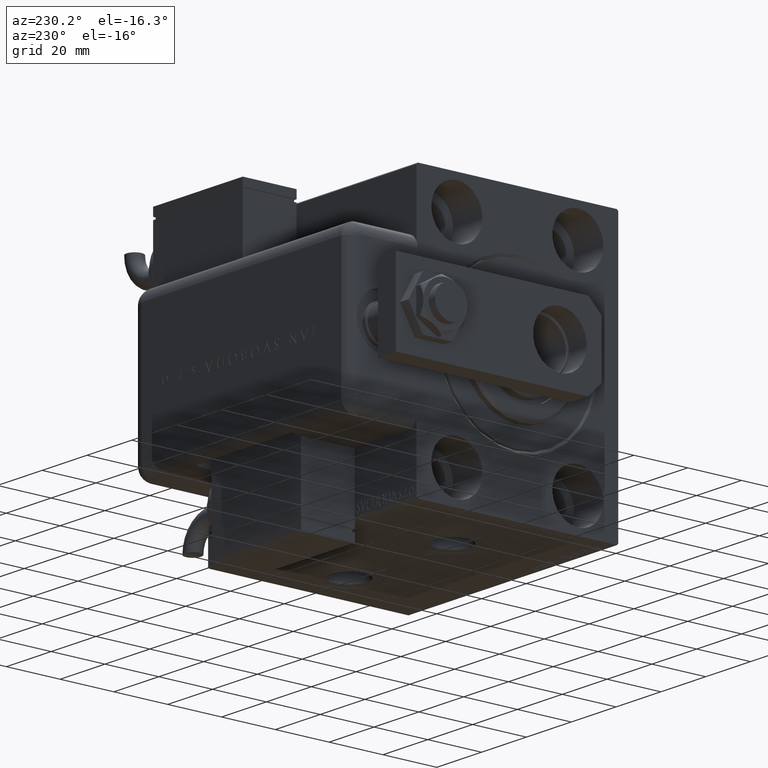
[diagram: clean part render]
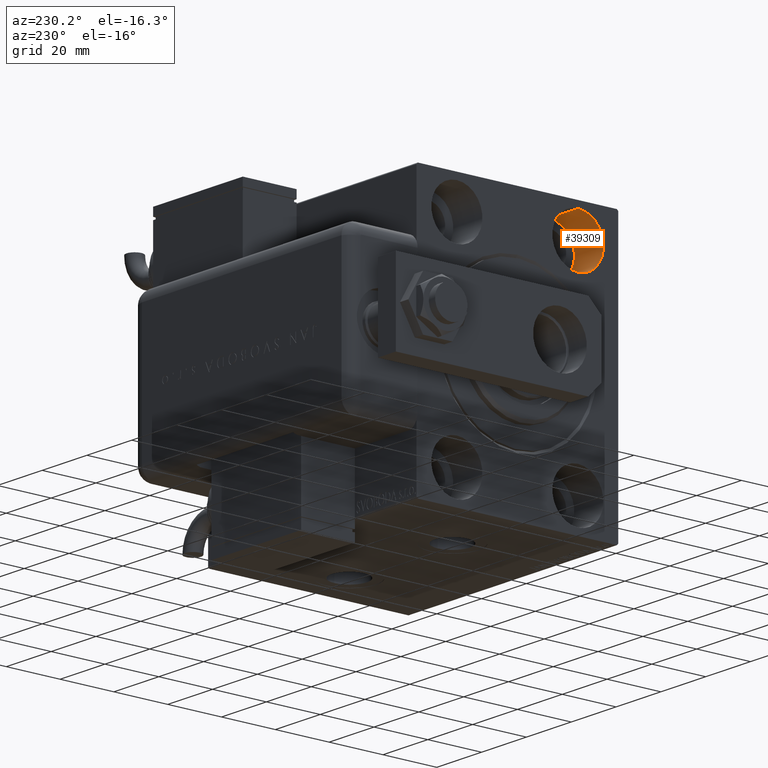
[diagram: same view with one face highlighted and labeled with its STEP entity id]
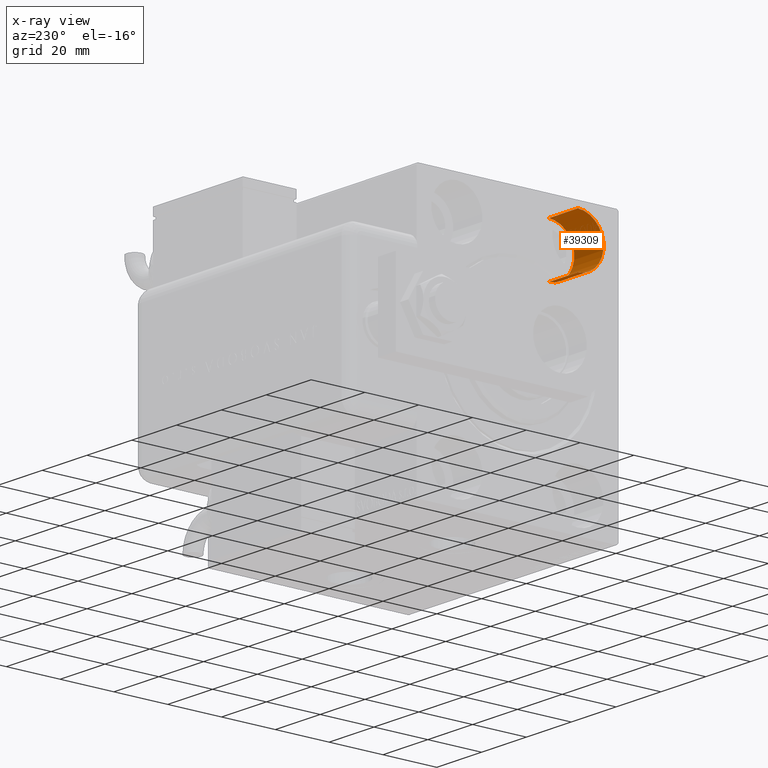
[diagram: x-ray of the same camera — body ghosted, the highlighted face saturated]
A machine part, auxiliary view. The second image highlights one B-rep face of the part: STEP entity #39309.
The next image is the same camera in x-ray: the body ghosted, the highlighted face saturated — about 0% of this face is hidden behind the body in this view.
In plain terms, the highlighted cylindrical surface (edge-blend (fillet) strip) has radius 9.5 mm, axis along (-1, -0, -0).
Its self-contained STEP definition (entity closure, byte-faithful):
#172 = CARTESIAN_POINT ( 'NONE',  ( 13.00000000000000000, -22.49999999999999645, 47.49999999999999289 ) ) ;
#235 = DIRECTION ( 'NONE',  ( -1.000000000000000000, -0.000000000000000000, -0.000000000000000000 ) ) ;
#2636 = EDGE_CURVE ( 'NONE', #35149, #15564, #36074, .T. ) ;
#2999 = CARTESIAN_POINT ( 'NONE',  ( 13.00000000000000000, -22.49999999999999645, 37.99999999999999289 ) ) ;
#6931 = EDGE_CURVE ( 'NONE', #52604, #44778, #22449, .T. ) ;
#13520 = DIRECTION ( 'NONE',  ( -1.000000000000000000, 0.000000000000000000, 0.000000000000000000 ) ) ;
#14165 = CARTESIAN_POINT ( 'NONE',  ( 13.00000000000000000, -22.49999999999999645, 28.49999999999998934 ) ) ;
#15564 = VERTEX_POINT ( 'NONE', #21268 ) ;
#15955 = CARTESIAN_POINT ( 'NONE',  ( 13.00000000000000000, -22.49999999999999645, 37.99999999999999289 ) ) ;
#18055 = CARTESIAN_POINT ( 'NONE',  ( 0.000000000000000000, -22.49999999999999645, 37.99999999999999289 ) ) ;
#18082 = VECTOR ( 'NONE', #235, 1000.000000000000000 ) ;
#20785 = DIRECTION ( 'NONE',  ( 0.000000000000000000, 0.000000000000000000, 1.000000000000000000 ) ) ;
#21088 = DIRECTION ( 'NONE',  ( -1.000000000000000000, -0.000000000000000000, -0.000000000000000000 ) ) ;
#21268 = CARTESIAN_POINT ( 'NONE',  ( 0.000000000000000000, -22.49999999999999645, 47.49999999999999289 ) ) ;
#21470 = CARTESIAN_POINT ( 'NONE',  ( 0.000000000000000000, -22.49999999999999645, 28.49999999999998934 ) ) ;
#21750 = DIRECTION ( 'NONE',  ( -1.000000000000000000, 0.000000000000000000, 0.000000000000000000 ) ) ;
#22449 = CIRCLE ( 'NONE', #34019, 9.500000000000001776 ) ;
#22858 = CARTESIAN_POINT ( 'NONE',  ( 13.00000000000000000, -22.49999999999999645, 47.49999999999999289 ) ) ;
#25333 = CYLINDRICAL_SURFACE ( 'NONE', #45642, 9.500000000000001776 ) ;
#26842 = EDGE_LOOP ( 'NONE', ( #57261, #53044, #40285, #26863 ) ) ;
#26863 = ORIENTED_EDGE ( 'NONE', *, *, #54171, .F. ) ;
#30805 = DIRECTION ( 'NONE',  ( 0.000000000000000000, 0.000000000000000000, 1.000000000000000000 ) ) ;
#31954 = DIRECTION ( 'NONE',  ( -1.000000000000000000, -0.000000000000000000, -0.000000000000000000 ) ) ;
#32168 = AXIS2_PLACEMENT_3D ( 'NONE', #18055, #13520, #30805 ) ;
#32860 = LINE ( 'NONE', #172, #48924 ) ;
#34019 = AXIS2_PLACEMENT_3D ( 'NONE', #2999, #21750, #40212 ) ;
#35149 = VERTEX_POINT ( 'NONE', #21470 ) ;
#36074 = CIRCLE ( 'NONE', #32168, 9.500000000000001776 ) ;
#36556 = LINE ( 'NONE', #14165, #18082 ) ;
#39309 = ADVANCED_FACE ( 'NONE', ( #57656 ), #25333, .F. ) ;
#40212 = DIRECTION ( 'NONE',  ( 0.000000000000000000, 0.000000000000000000, 1.000000000000000000 ) ) ;
#40285 = ORIENTED_EDGE ( 'NONE', *, *, #2636, .T. ) ;
#44778 = VERTEX_POINT ( 'NONE', #22858 ) ;
#45642 = AXIS2_PLACEMENT_3D ( 'NONE', #15955, #21088, #20785 ) ;
#47637 = CARTESIAN_POINT ( 'NONE',  ( 13.00000000000000000, -22.49999999999999645, 28.49999999999998934 ) ) ;
#48924 = VECTOR ( 'NONE', #31954, 1000.000000000000000 ) ;
#52604 = VERTEX_POINT ( 'NONE', #47637 ) ;
#53044 = ORIENTED_EDGE ( 'NONE', *, *, #55915, .T. ) ;
#54171 = EDGE_CURVE ( 'NONE', #44778, #15564, #32860, .T. ) ;
#55915 = EDGE_CURVE ( 'NONE', #52604, #35149, #36556, .T. ) ;
#57261 = ORIENTED_EDGE ( 'NONE', *, *, #6931, .F. ) ;
#57656 = FACE_OUTER_BOUND ( 'NONE', #26842, .T. ) ;